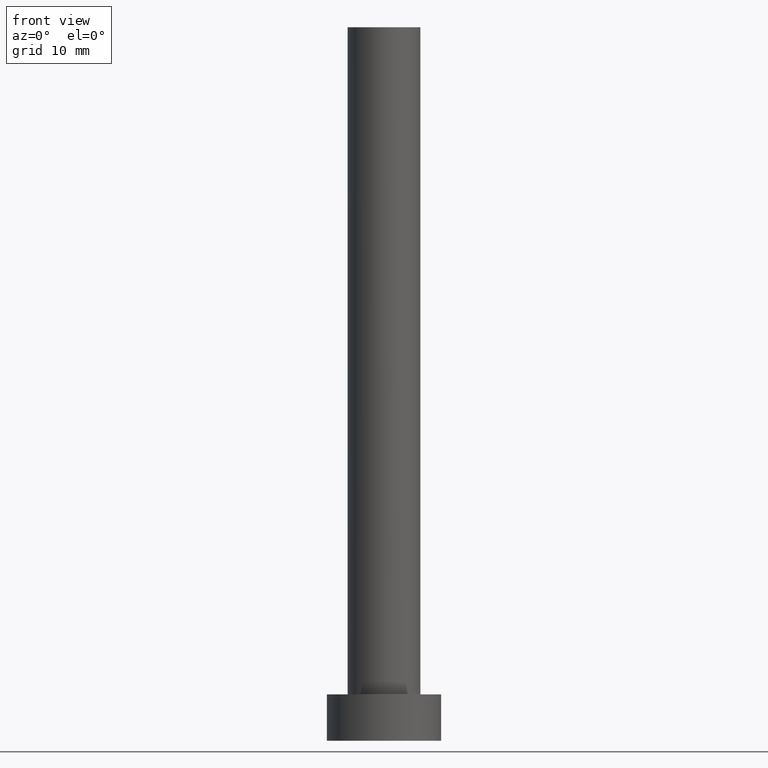
[diagram: clean part render]
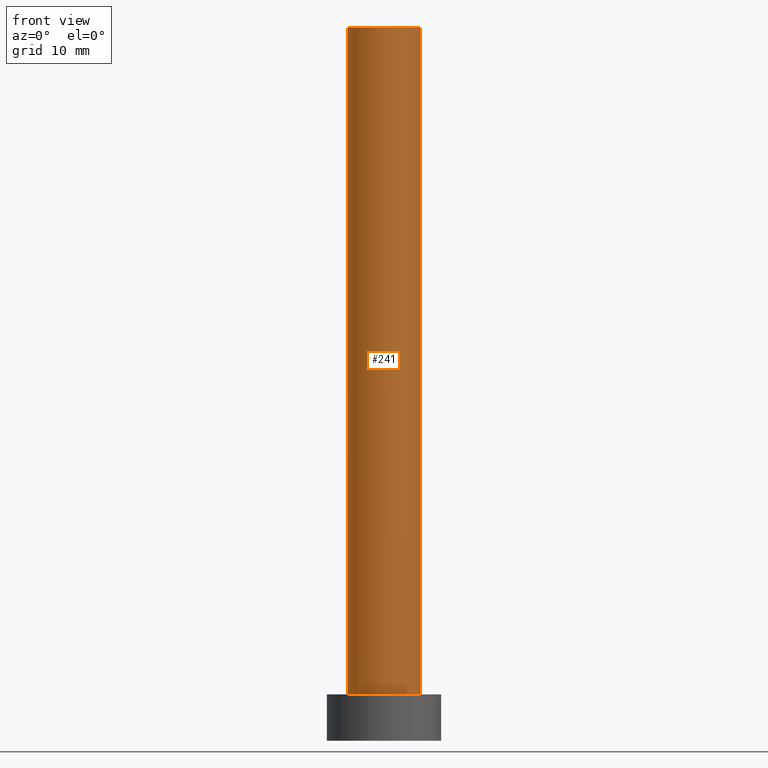
[diagram: same view with one face highlighted and labeled with its STEP entity id]
A machine part, front view. The second image highlights one B-rep face of the part: STEP entity #241.
In plain terms, the highlighted cylindrical surface (edge-blend (fillet) strip) has radius 5.1 mm, axis along (-0, -0, -1).
Its self-contained STEP definition (entity closure, byte-faithful):
#1 = ORIENTED_EDGE ( 'NONE', *, *, #247, .F. ) ;
#17 = CARTESIAN_POINT ( 'NONE',  ( 0.000000000000000000, 0.000000000000000000, 6.500000000000000000 ) ) ;
#23 = ORIENTED_EDGE ( 'NONE', *, *, #73, .T. ) ;
#32 = EDGE_CURVE ( 'NONE', #58, #123, #64, .T. ) ;
#39 = CARTESIAN_POINT ( 'NONE',  ( -5.100000000000001421, 0.000000000000000000, 100.0000000000000000 ) ) ;
#51 = AXIS2_PLACEMENT_3D ( 'NONE', #77, #81, #61 ) ;
#56 = VERTEX_POINT ( 'NONE', #221 ) ;
#58 = VERTEX_POINT ( 'NONE', #39 ) ;
#61 = DIRECTION ( 'NONE',  ( 1.000000000000000000, 0.000000000000000000, 0.000000000000000000 ) ) ;
#64 = CIRCLE ( 'NONE', #51, 5.100000000000001421 ) ;
#73 = EDGE_CURVE ( 'NONE', #167, #56, #155, .T. ) ;
#77 = CARTESIAN_POINT ( 'NONE',  ( 0.000000000000000000, 0.000000000000000000, 100.0000000000000000 ) ) ;
#80 = CARTESIAN_POINT ( 'NONE',  ( 0.000000000000000000, 0.000000000000000000, 100.0000000000000000 ) ) ;
#81 = DIRECTION ( 'NONE',  ( 0.000000000000000000, 0.000000000000000000, 1.000000000000000000 ) ) ;
#89 = CARTESIAN_POINT ( 'NONE',  ( -5.100000000000001421, 0.000000000000000000, 100.0000000000000000 ) ) ;
#91 = EDGE_LOOP ( 'NONE', ( #1, #101, #225, #23 ) ) ;
#101 = ORIENTED_EDGE ( 'NONE', *, *, #32, .F. ) ;
#109 = DIRECTION ( 'NONE',  ( 1.000000000000000000, 0.000000000000000000, 0.000000000000000000 ) ) ;
#114 = CYLINDRICAL_SURFACE ( 'NONE', #116, 5.100000000000001421 ) ;
#116 = AXIS2_PLACEMENT_3D ( 'NONE', #80, #164, #235 ) ;
#123 = VERTEX_POINT ( 'NONE', #175 ) ;
#134 = AXIS2_PLACEMENT_3D ( 'NONE', #17, #165, #109 ) ;
#149 = CARTESIAN_POINT ( 'NONE',  ( 5.100000000000001421, 6.245698675651502811E-16, 100.0000000000000000 ) ) ;
#155 = CIRCLE ( 'NONE', #134, 5.100000000000001421 ) ;
#163 = DIRECTION ( 'NONE',  ( -0.000000000000000000, -0.000000000000000000, -1.000000000000000000 ) ) ;
#164 = DIRECTION ( 'NONE',  ( -0.000000000000000000, -0.000000000000000000, -1.000000000000000000 ) ) ;
#165 = DIRECTION ( 'NONE',  ( 0.000000000000000000, 0.000000000000000000, 1.000000000000000000 ) ) ;
#167 = VERTEX_POINT ( 'NONE', #181 ) ;
#175 = CARTESIAN_POINT ( 'NONE',  ( 5.100000000000001421, 6.245698675651502811E-16, 100.0000000000000000 ) ) ;
#178 = VECTOR ( 'NONE', #180, 1000.000000000000000 ) ;
#180 = DIRECTION ( 'NONE',  ( -0.000000000000000000, -0.000000000000000000, -1.000000000000000000 ) ) ;
#181 = CARTESIAN_POINT ( 'NONE',  ( -5.100000000000001421, 0.000000000000000000, 6.500000000000000000 ) ) ;
#192 = EDGE_CURVE ( 'NONE', #58, #167, #200, .T. ) ;
#200 = LINE ( 'NONE', #89, #178 ) ;
#203 = FACE_OUTER_BOUND ( 'NONE', #91, .T. ) ;
#204 = VECTOR ( 'NONE', #163, 1000.000000000000000 ) ;
#221 = CARTESIAN_POINT ( 'NONE',  ( 5.100000000000001421, 6.245698675651502811E-16, 6.500000000000000000 ) ) ;
#225 = ORIENTED_EDGE ( 'NONE', *, *, #192, .T. ) ;
#235 = DIRECTION ( 'NONE',  ( -1.000000000000000000, 0.000000000000000000, 0.000000000000000000 ) ) ;
#237 = LINE ( 'NONE', #149, #204 ) ;
#241 = ADVANCED_FACE ( 'NONE', ( #203 ), #114, .T. ) ;
#247 = EDGE_CURVE ( 'NONE', #123, #56, #237, .T. ) ;